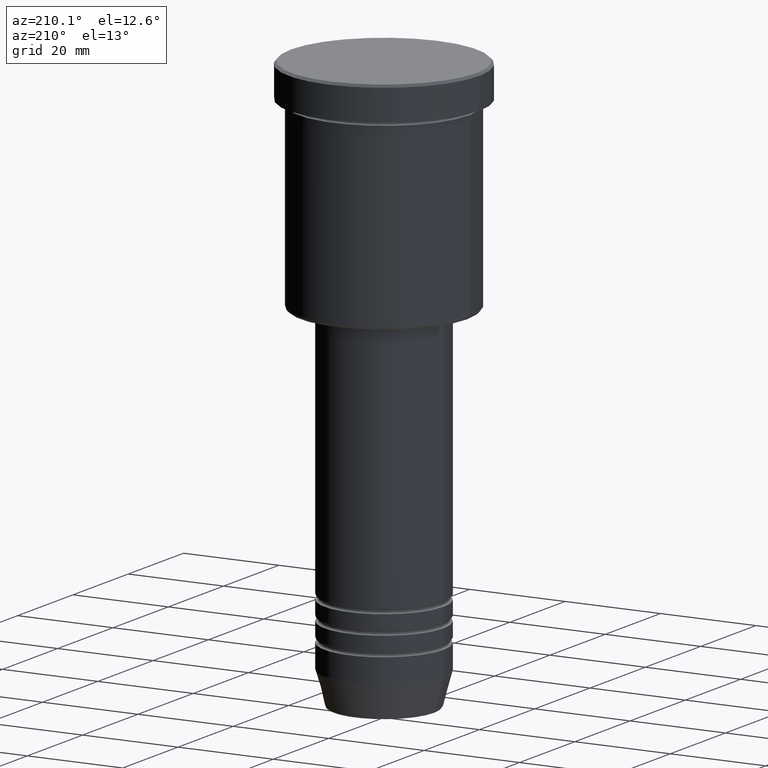
[diagram: clean part render]
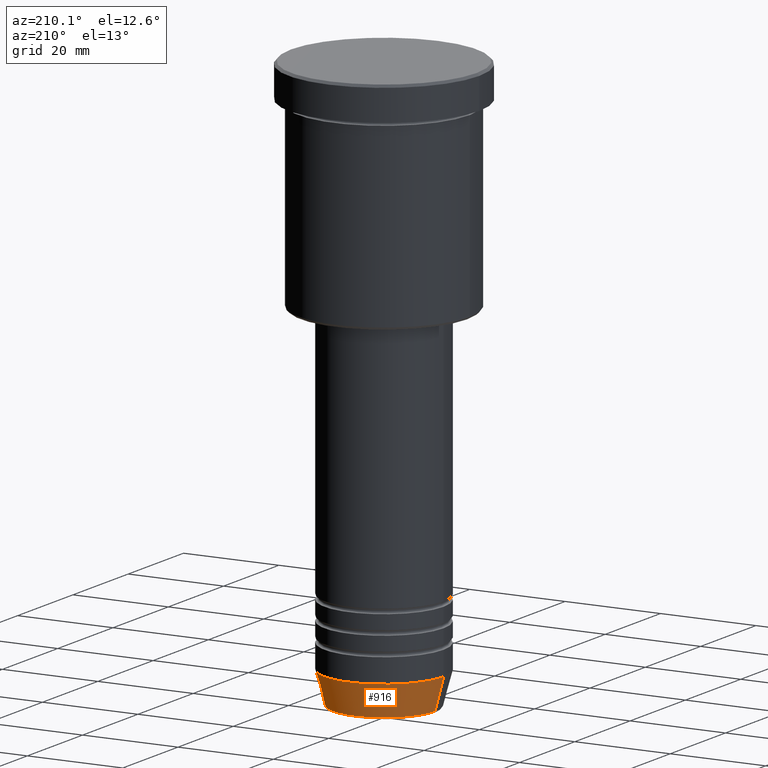
[diagram: same view with one face highlighted and labeled with its STEP entity id]
A machine part, auxiliary view. The second image highlights one B-rep face of the part: STEP entity #916.
In plain terms, the highlighted conical surface has half-angle 15 deg.
Its self-contained STEP definition (entity closure, byte-faithful):
#45 = LINE ( 'NONE', #501, #354 ) ;
#51 = CARTESIAN_POINT ( 'NONE',  ( 0.000000000000000000, 0.000000000000000000, -119.6294095225512564 ) ) ;
#140 = LINE ( 'NONE', #965, #757 ) ;
#182 = EDGE_CURVE ( 'NONE', #447, #966, #140, .T. ) ;
#186 = EDGE_CURVE ( 'NONE', #691, #447, #252, .T. ) ;
#209 = AXIS2_PLACEMENT_3D ( 'NONE', #568, #1032, #393 ) ;
#227 = EDGE_LOOP ( 'NONE', ( #877, #789, #931, #688 ) ) ;
#238 = DIRECTION ( 'NONE',  ( -0.000000000000000000, -0.000000000000000000, 1.000000000000000000 ) ) ;
#252 = CIRCLE ( 'NONE', #1021, 10.72365507213718416 ) ;
#339 = CARTESIAN_POINT ( 'NONE',  ( 0.000000000000000000, 0.000000000000000000, -112.9999999999999858 ) ) ;
#354 = VECTOR ( 'NONE', #700, 1000.000000000000000 ) ;
#393 = DIRECTION ( 'NONE',  ( 1.000000000000000000, 0.000000000000000000, 0.000000000000000000 ) ) ;
#412 = DIRECTION ( 'NONE',  ( 1.000000000000000000, 0.000000000000000000, 0.000000000000000000 ) ) ;
#414 = EDGE_CURVE ( 'NONE', #691, #714, #45, .T. ) ;
#447 = VERTEX_POINT ( 'NONE', #689 ) ;
#483 = CIRCLE ( 'NONE', #1001, 12.50000000000000000 ) ;
#500 = CARTESIAN_POINT ( 'NONE',  ( -12.50000000000000000, 1.530808498934191521E-15, -112.9999999999999858 ) ) ;
#501 = CARTESIAN_POINT ( 'NONE',  ( 12.50000000000000000, 0.000000000000000000, -112.9999999999999858 ) ) ;
#506 = DIRECTION ( 'NONE',  ( -0.2588190451025213501, 3.169619151431772337E-17, 0.9659258262890680902 ) ) ;
#568 = CARTESIAN_POINT ( 'NONE',  ( 0.000000000000000000, 0.000000000000000000, -112.9999999999999858 ) ) ;
#662 = FACE_OUTER_BOUND ( 'NONE', #227, .T. ) ;
#688 = ORIENTED_EDGE ( 'NONE', *, *, #414, .F. ) ;
#689 = CARTESIAN_POINT ( 'NONE',  ( -10.72365507213718416, 1.422038742429749727E-15, -119.6294095225512564 ) ) ;
#691 = VERTEX_POINT ( 'NONE', #707 ) ;
#700 = DIRECTION ( 'NONE',  ( 0.2588190451025213501, 0.000000000000000000, 0.9659258262890680902 ) ) ;
#707 = CARTESIAN_POINT ( 'NONE',  ( 10.72365507213718416, 0.000000000000000000, -119.6294095225512564 ) ) ;
#714 = VERTEX_POINT ( 'NONE', #893 ) ;
#721 = DIRECTION ( 'NONE',  ( -0.000000000000000000, -0.000000000000000000, 1.000000000000000000 ) ) ;
#757 = VECTOR ( 'NONE', #506, 1000.000000000000000 ) ;
#789 = ORIENTED_EDGE ( 'NONE', *, *, #182, .T. ) ;
#854 = CONICAL_SURFACE ( 'NONE', #209, 12.50000000000000000, 0.2617993877991500740 ) ;
#858 = EDGE_CURVE ( 'NONE', #714, #966, #483, .T. ) ;
#877 = ORIENTED_EDGE ( 'NONE', *, *, #186, .T. ) ;
#893 = CARTESIAN_POINT ( 'NONE',  ( 12.50000000000000000, 0.000000000000000000, -112.9999999999999858 ) ) ;
#916 = ADVANCED_FACE ( 'NONE', ( #662 ), #854, .T. ) ;
#931 = ORIENTED_EDGE ( 'NONE', *, *, #858, .F. ) ;
#965 = CARTESIAN_POINT ( 'NONE',  ( -12.50000000000000000, 1.530808498934191521E-15, -112.9999999999999858 ) ) ;
#966 = VERTEX_POINT ( 'NONE', #500 ) ;
#1001 = AXIS2_PLACEMENT_3D ( 'NONE', #339, #721, #1176 ) ;
#1021 = AXIS2_PLACEMENT_3D ( 'NONE', #51, #238, #412 ) ;
#1032 = DIRECTION ( 'NONE',  ( -0.000000000000000000, -0.000000000000000000, 1.000000000000000000 ) ) ;
#1176 = DIRECTION ( 'NONE',  ( 1.000000000000000000, 0.000000000000000000, 0.000000000000000000 ) ) ;